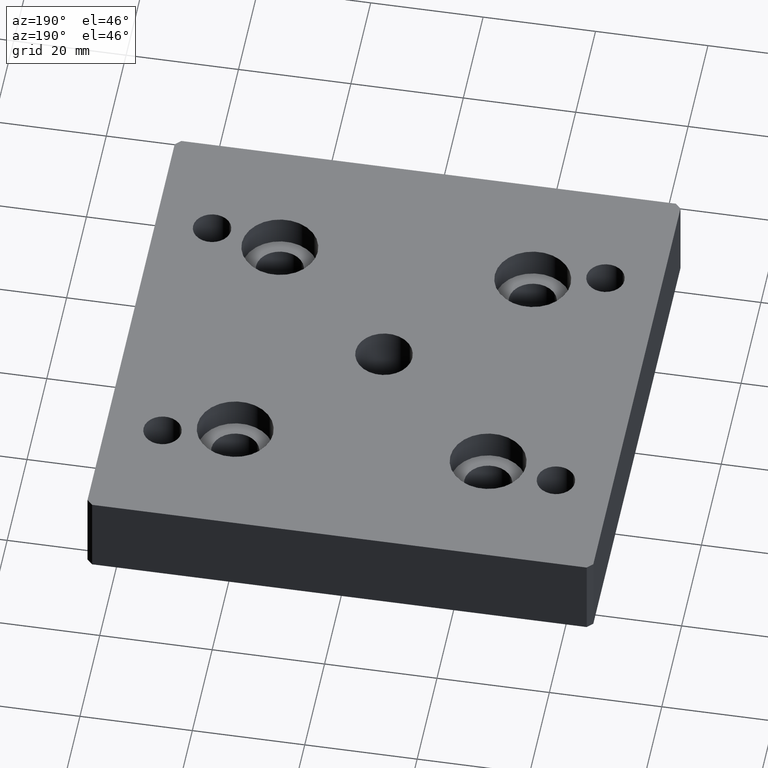
[diagram: clean part render]
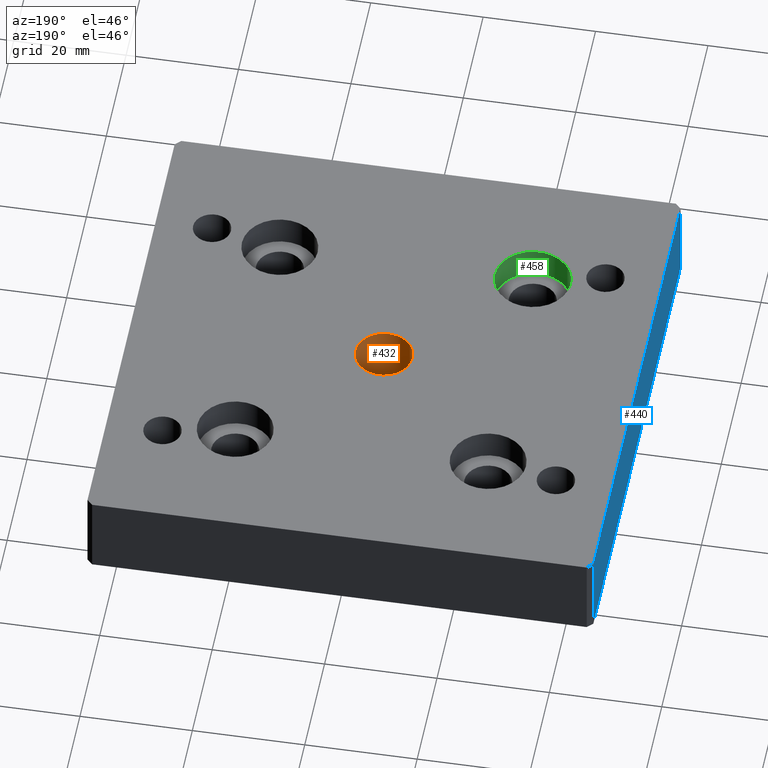
[diagram: same view with three faces highlighted in distinct colors, each labeled with its STEP entity id]
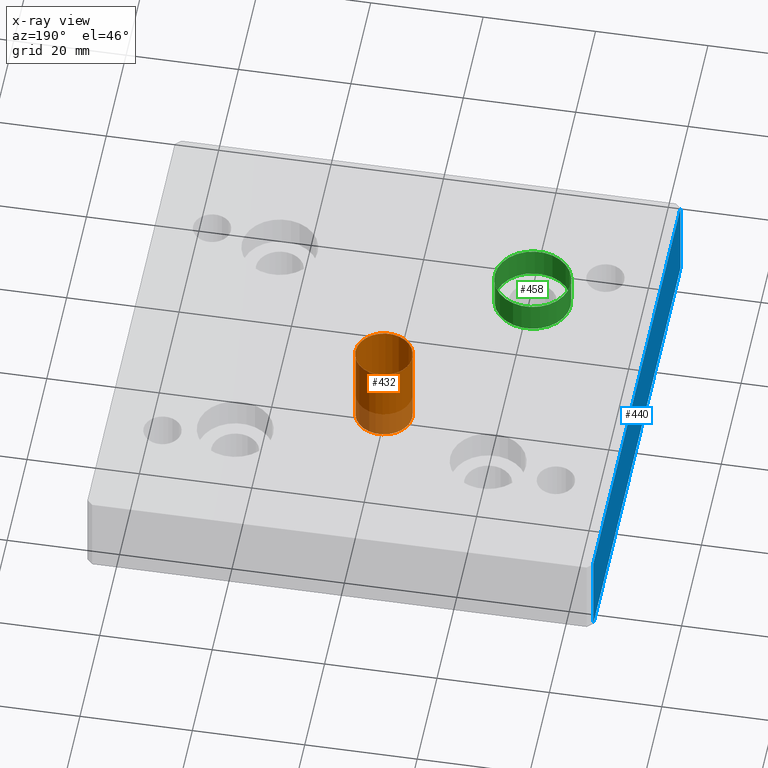
[diagram: x-ray of the same camera — body ghosted, the three highlighted faces saturated]
A machine part, auxiliary view with three faces highlighted in distinct colors.
The next image is the same camera in x-ray (body ghosted, the three faces saturated) — at least one of them is partly hidden behind the body in this view.
Their STEP definitions:

[orange] entity #432 — the highlighted cylindrical surface (bore or boss wall) has radius 5.053 mm, axis along (0, 0, 1).
#77=FACE_BOUND('',#140,.T.);
#112=FACE_OUTER_BOUND('',#139,.T.);
#139=EDGE_LOOP('',(#319));
#140=EDGE_LOOP('',(#320));
#201=CIRCLE('',#462,5.053);
#202=CIRCLE('',#463,5.053);
#227=VERTEX_POINT('',#648);
#228=VERTEX_POINT('',#650);
#269=EDGE_CURVE('',#227,#227,#201,.T.);
#270=EDGE_CURVE('',#228,#228,#202,.T.);
#319=ORIENTED_EDGE('',*,*,#269,.F.);
#320=ORIENTED_EDGE('',*,*,#270,.F.);
#419=CYLINDRICAL_SURFACE('',#461,5.053);
#432=ADVANCED_FACE('',(#112,#77),#419,.F.);
#461=AXIS2_PLACEMENT_3D('',#647,#516,#517);
#462=AXIS2_PLACEMENT_3D('',#649,#518,#519);
#463=AXIS2_PLACEMENT_3D('',#651,#520,#521);
#516=DIRECTION('center_axis',(0.,0.,1.));
#517=DIRECTION('ref_axis',(1.,0.,0.));
#518=DIRECTION('center_axis',(0.,0.,-1.));
#519=DIRECTION('ref_axis',(1.,0.,0.));
#520=DIRECTION('center_axis',(0.,0.,1.));
#521=DIRECTION('ref_axis',(1.,0.,0.));
#647=CARTESIAN_POINT('Origin',(0.,0.,-7.5));
#648=CARTESIAN_POINT('',(5.053,0.,0.));
#649=CARTESIAN_POINT('Origin',(0.,0.,0.));
#650=CARTESIAN_POINT('',(5.053,0.,-15.));
#651=CARTESIAN_POINT('Origin',(0.,0.,-15.));

[blue] entity #440 — the highlighted planar face has unit normal (1, 0, 0).
#15=LINE('',#655,#39);
#35=LINE('',#695,#59);
#37=LINE('',#698,#61);
#38=LINE('',#699,#62);
#39=VECTOR('',#524,15.);
#59=VECTOR('',#556,15.);
#61=VECTOR('',#560,87.999999999648);
#62=VECTOR('',#561,87.999999999648);
#70=PLANE('',#471);
#120=FACE_OUTER_BOUND('',#148,.T.);
#148=EDGE_LOOP('',(#349,#350,#351,#352));
#229=VERTEX_POINT('',#653);
#230=VERTEX_POINT('',#654);
#243=VERTEX_POINT('',#692);
#244=VERTEX_POINT('',#694);
#271=EDGE_CURVE('',#229,#230,#15,.T.);
#291=EDGE_CURVE('',#244,#243,#35,.T.);
#293=EDGE_CURVE('',#243,#230,#37,.T.);
#294=EDGE_CURVE('',#244,#229,#38,.T.);
#349=ORIENTED_EDGE('',*,*,#291,.T.);
#350=ORIENTED_EDGE('',*,*,#293,.T.);
#351=ORIENTED_EDGE('',*,*,#271,.F.);
#352=ORIENTED_EDGE('',*,*,#294,.F.);
#440=ADVANCED_FACE('',(#120),#70,.F.);
#471=AXIS2_PLACEMENT_3D('',#697,#558,#559);
#524=DIRECTION('',(0.,0.,-1.));
#556=DIRECTION('',(0.,0.,-1.));
#558=DIRECTION('center_axis',(1.,0.,0.));
#559=DIRECTION('ref_axis',(0.,0.,-1.));
#560=DIRECTION('',(0.,-1.,0.));
#561=DIRECTION('',(0.,-1.,0.));
#653=CARTESIAN_POINT('',(-44.9999999998199,-43.999999999824,0.));
#654=CARTESIAN_POINT('',(-44.9999999998199,-43.999999999824,-15.));
#655=CARTESIAN_POINT('',(-44.9999999998199,-43.999999999824,0.));
#692=CARTESIAN_POINT('',(-44.9999999998199,43.999999999824,-15.));
#694=CARTESIAN_POINT('',(-44.9999999998199,43.999999999824,0.));
#695=CARTESIAN_POINT('',(-44.9999999998199,43.999999999824,0.));
#697=CARTESIAN_POINT('Origin',(-44.9999999998199,43.999999999824,0.));
#698=CARTESIAN_POINT('',(-44.9999999998199,43.999999999824,-15.));
#699=CARTESIAN_POINT('',(-44.9999999998199,43.999999999824,0.));

[green] entity #458 — the highlighted cylindrical surface (bore or boss wall) has radius 6.75 mm, axis along (0, 0, 1).
#111=FACE_BOUND('',#200,.T.);
#138=FACE_OUTER_BOUND('',#199,.T.);
#199=EDGE_LOOP('',(#417));
#200=EDGE_LOOP('',(#418));
#210=CIRCLE('',#480,6.75);
#226=CIRCLE('',#512,6.75);
#252=VERTEX_POINT('',#715);
#268=VERTEX_POINT('',#763);
#302=EDGE_CURVE('',#252,#252,#210,.T.);
#318=EDGE_CURVE('',#268,#268,#226,.T.);
#417=ORIENTED_EDGE('',*,*,#302,.T.);
#418=ORIENTED_EDGE('',*,*,#318,.F.);
#431=CYLINDRICAL_SURFACE('',#513,6.75);
#458=ADVANCED_FACE('',(#138,#111),#431,.F.);
#480=AXIS2_PLACEMENT_3D('',#716,#578,#579);
#512=AXIS2_PLACEMENT_3D('',#764,#642,#643);
#513=AXIS2_PLACEMENT_3D('',#765,#644,#645);
#578=DIRECTION('center_axis',(0.,0.,1.));
#579=DIRECTION('ref_axis',(1.,0.,0.));
#642=DIRECTION('center_axis',(0.,0.,1.));
#643=DIRECTION('ref_axis',(1.,0.,0.));
#644=DIRECTION('center_axis',(0.,0.,1.));
#645=DIRECTION('ref_axis',(1.,0.,0.));
#715=CARTESIAN_POINT('',(-29.24999999991,-22.49999999991,0.));
#716=CARTESIAN_POINT('Origin',(-22.49999999991,-22.49999999991,0.));
#763=CARTESIAN_POINT('',(-29.24999999991,-22.49999999991,-5.5));
#764=CARTESIAN_POINT('Origin',(-22.49999999991,-22.49999999991,-5.5));
#765=CARTESIAN_POINT('Origin',(-22.49999999991,-22.49999999991,-5.5));